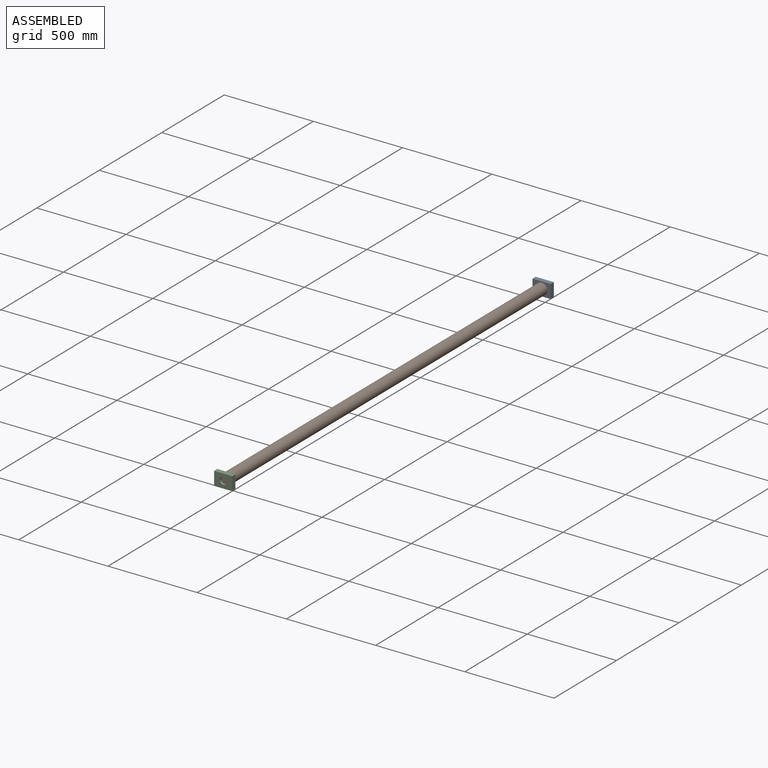
[diagram: assembled view]
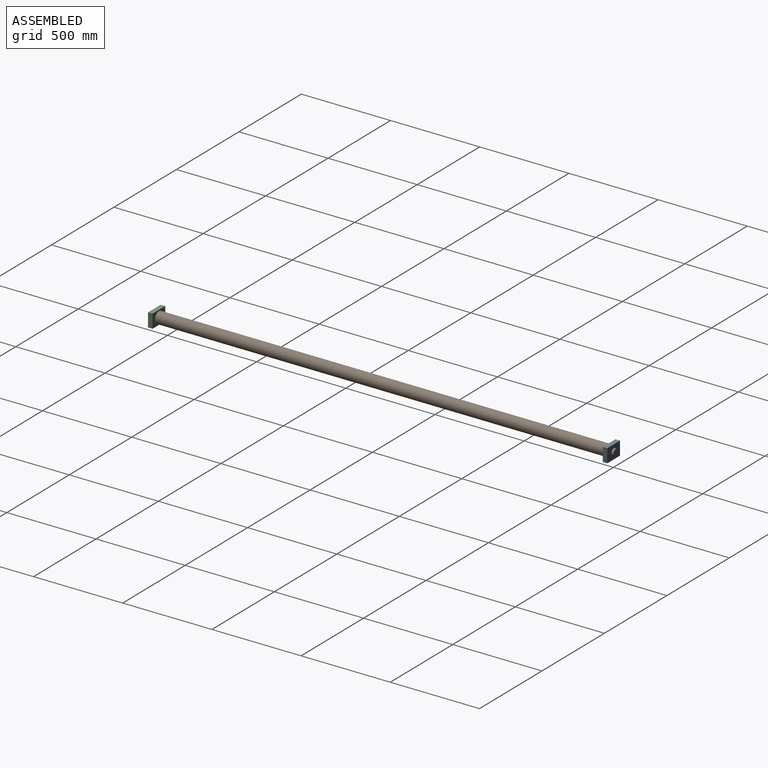
[diagram: assembled view, second angle]
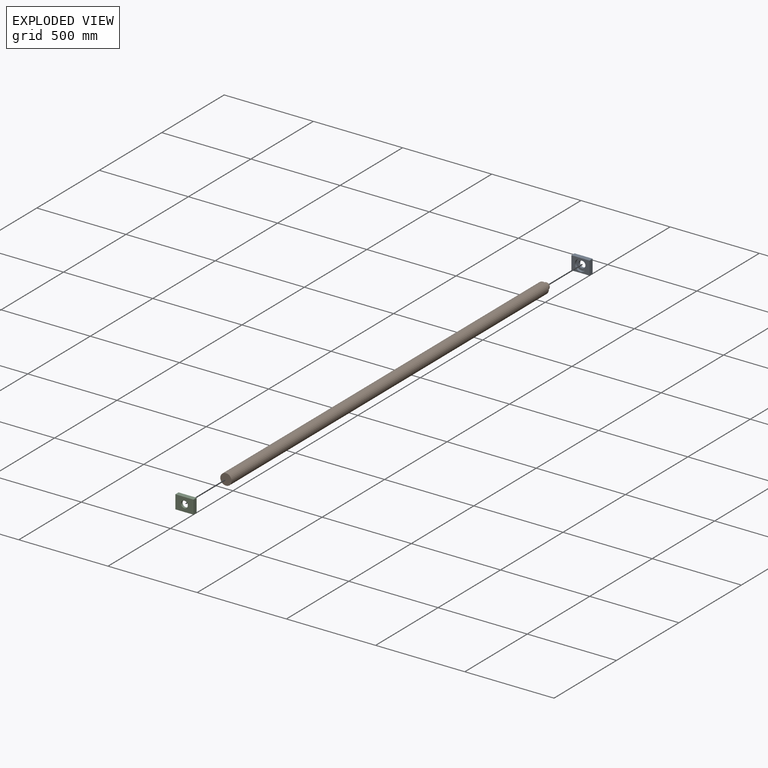
[diagram: exploded view]
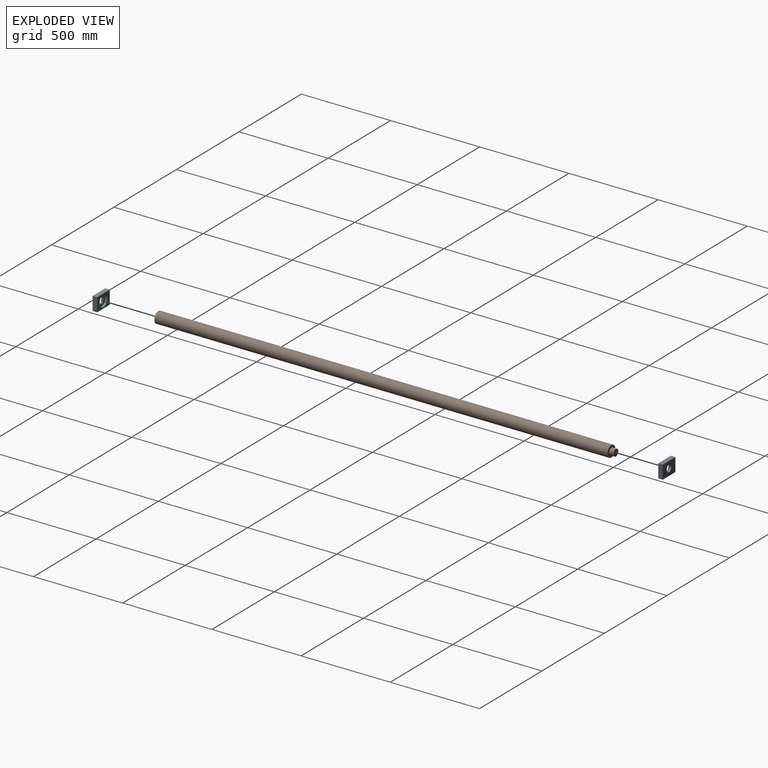
[diagram: exploded view, second angle]
ASSEMBLY  parts=3 mates=2
PART A: 9 faces, bbox 101.6x25.4x76.2 mm
  f0: plane 76.2x25.4mm, normal (-1,0,0), area 1935.5mm2, adj f1,f4,f5,f6
  f1: plane 101.6x25.4mm, normal (0,0,-1), area 2580.6mm2, adj f0,f2,f5,f6
  f2: plane 76.2x25.4mm, normal (1,0,0), area 1935.5mm2, adj f1,f4,f5,f6
  f3: cylinder r=31.75mm len=63.5mm, axis (0,1,0), area 2533.5mm2, adj f5,f8
  f4: plane 101.6x25.4mm, normal (0,0,1), area 2580.6mm2, adj f0,f2,f5,f6
  f5: plane 101.6x76.2mm, normal (0,-1,0), area 4575mm2, adj f0,f1,f2,f3,f4
  f6: plane 101.6x76.2mm, normal (0,1,0), area 6601.8mm2, adj f0,f1,f2,f4,f7
  f7: cylinder r=19.05mm len=38.1mm, axis (0,1,0), area 1520.1mm2, adj f6,f8
  f8: plane 63.5x63.5mm, normal (0,-1,0), area 2026.8mm2, adj f3,f7
PART B: 5 faces, bbox 63.5x2565.4x63.5 mm
  f0: cylinder r=19.05mm len=38.1mm, axis (0,1,0), area 3040.2mm2, adj f1,f3
  f1: plane 38.1x38.1mm, normal (0,-1,0), area 1140.1mm2, adj f0
  f2: cylinder r=31.75mm len=2540mm, axis (0,1,0), area 506707.5mm2, adj f3,f4
  f3: plane 63.5x63.5mm, normal (0,-1,0), area 2026.8mm2, adj f0,f2
  f4: plane 63.5x63.5mm, normal (0,1,0), area 3166.9mm2, adj f2
PART C: same geometry as A
PLACE A t=(-53.03,0,-139.91)mm
PLACE B rot(axis=(1,0,0),180deg) t=(-2.23,-2552.7,-101.81)mm
PLACE C rot(axis=(1,0,0),180deg) t=(-53.03,-2574.59,-63.71)mm
MATE cylindrical C.f3 <-> B.f0  axis (0,1,0) through (-2.23,-2561.89,-101.81)mm
MATE cylindrical B.f0 <-> A.f3  axis (0,1,0) through (-2.23,-12.7,-101.81)mm
